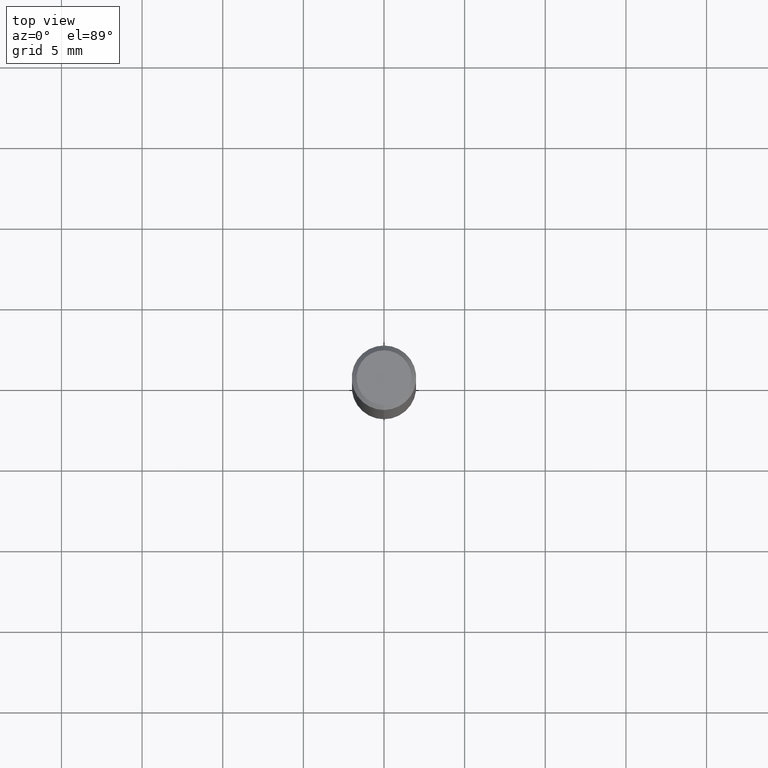
[diagram: clean part render]
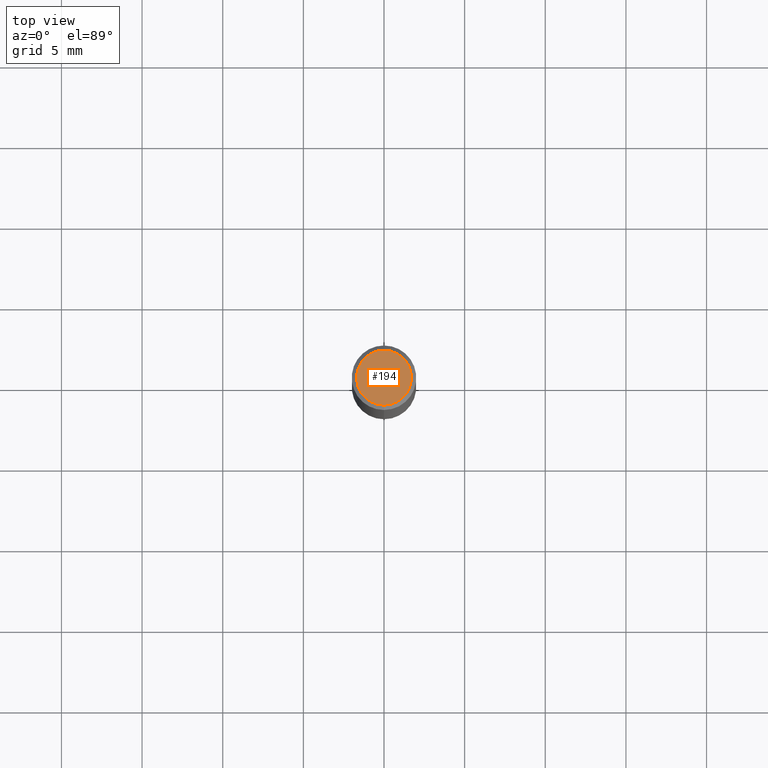
[diagram: same view with one face highlighted and labeled with its STEP entity id]
A machine part, top view. The second image highlights one B-rep face of the part: STEP entity #194.
In plain terms, the highlighted planar face has unit normal (-0, 0, 1).
Its self-contained STEP definition (entity closure, byte-faithful):
#124=VERTEX_POINT('',#270);
#130=EDGE_CURVE('',#142,#124,#276,.T.);
#142=VERTEX_POINT('',#289);
#152=EDGE_CURVE('',#124,#142,#302,.T.);
#194=ADVANCED_FACE('',(#349),#350,.T.);
#270=CARTESIAN_POINT('',(2.08183080149804E-016,-1.7,0.0));
#276=CIRCLE('',#439,1.7);
#289=CARTESIAN_POINT('',(0.0,1.7,0.0));
#302=CIRCLE('',#471,1.7);
#349=FACE_OUTER_BOUND('',#532,.T.);
#350=PLANE('',#533);
#439=AXIS2_PLACEMENT_3D('',#615,#616,#617);
#471=AXIS2_PLACEMENT_3D('',#652,#653,#654);
#532=EDGE_LOOP('',(#711,#712));
#533=AXIS2_PLACEMENT_3D('',#713,#714,#715);
#615=CARTESIAN_POINT('',(0.0,0.0,0.0));
#616=DIRECTION('',(0.0,0.0,-1.0));
#617=DIRECTION('',(0.0,1.0,0.0));
#652=CARTESIAN_POINT('',(0.0,0.0,0.0));
#653=DIRECTION('',(0.0,0.0,-1.0));
#654=DIRECTION('',(0.0,1.0,0.0));
#711=ORIENTED_EDGE('',*,*,#130,.F.);
#712=ORIENTED_EDGE('',*,*,#152,.F.);
#713=CARTESIAN_POINT('',(0.0,0.85,0.0));
#714=DIRECTION('',(-0.0,0.0,1.0));
#715=DIRECTION('',(0.0,-1.0,0.0));